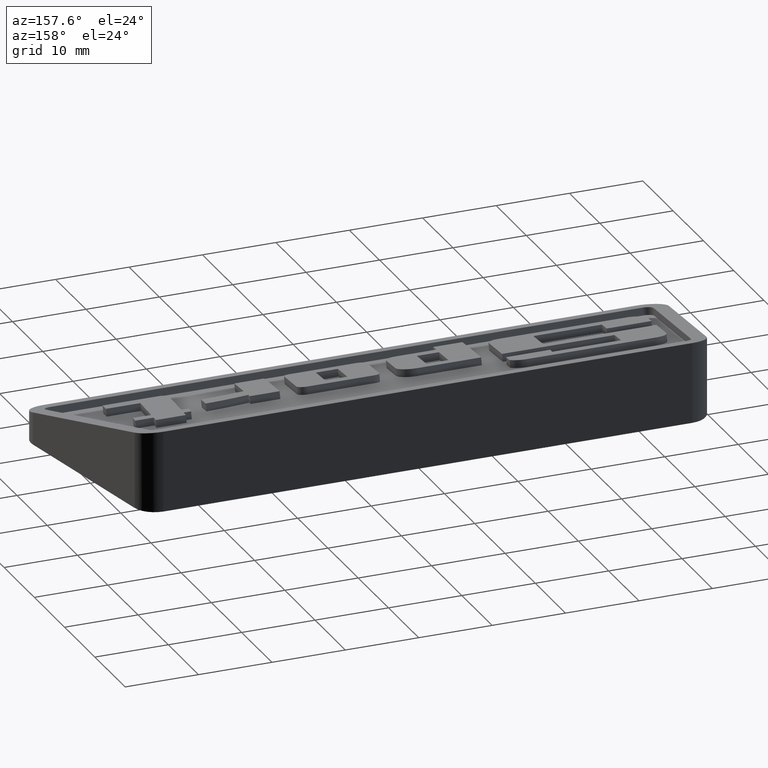
[diagram: clean part render]
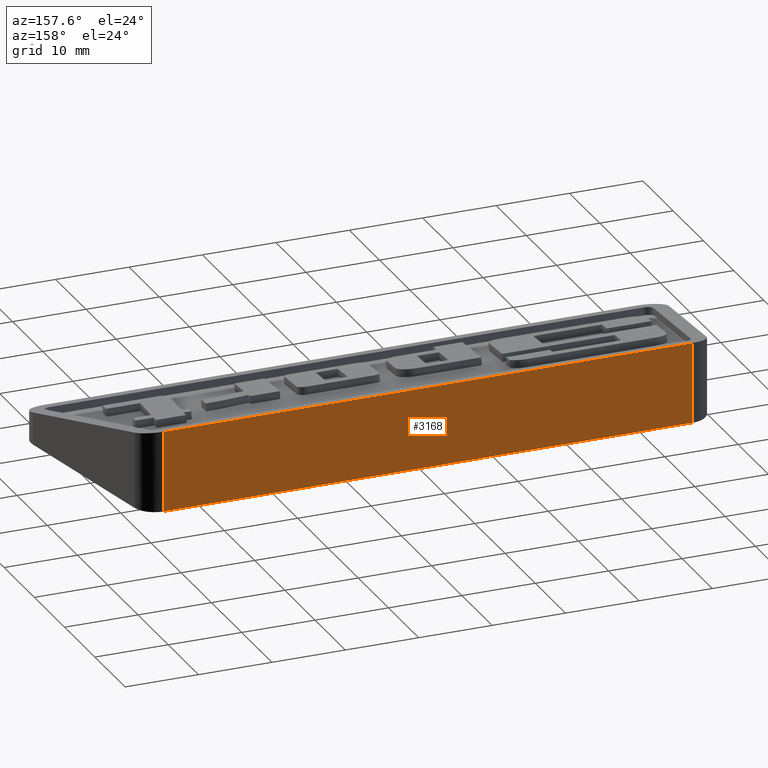
[diagram: same view with one face highlighted and labeled with its STEP entity id]
A machine part, auxiliary view. The second image highlights one B-rep face of the part: STEP entity #3168.
In plain terms, the highlighted planar face has unit normal (0, 1, 0).
Its self-contained STEP definition (entity closure, byte-faithful):
#2928=CARTESIAN_POINT('',(36.015488522107837,14.500000000000002,11.0));
#2929=VERTEX_POINT('',#2928);
#2937=CARTESIAN_POINT('',(-36.015488522107837,14.500000000000002,11.0));
#2938=VERTEX_POINT('',#2937);
#2939=CARTESIAN_POINT('',(-36.015488522107837,14.500000000000002,11.0));
#2940=DIRECTION('',(1.0,0.0,0.0));
#2941=VECTOR('',#2940,72.030977044215675);
#2942=LINE('',#2939,#2941);
#2943=EDGE_CURVE('',#2938,#2929,#2942,.T.);
#3035=CARTESIAN_POINT('',(-36.015488522107837,14.500000000000002,0.0));
#3036=VERTEX_POINT('',#3035);
#3037=CARTESIAN_POINT('',(-36.015488522107837,14.500000000000002,0.0));
#3038=DIRECTION('',(0.0,0.0,1.0));
#3039=VECTOR('',#3038,11.0);
#3040=LINE('',#3037,#3039);
#3041=EDGE_CURVE('',#3036,#2938,#3040,.T.);
#3068=CARTESIAN_POINT('',(36.015488522107837,14.500000000000002,0.0));
#3069=VERTEX_POINT('',#3068);
#3077=CARTESIAN_POINT('',(36.015488522107837,14.500000000000002,0.0));
#3078=DIRECTION('',(0.0,0.0,1.0));
#3079=VECTOR('',#3078,11.0);
#3080=LINE('',#3077,#3079);
#3081=EDGE_CURVE('',#3069,#2929,#3080,.T.);
#3152=CARTESIAN_POINT('',(-36.015488522107837,14.500000000000002,0.0));
#3153=DIRECTION('',(0.0,1.0,0.0));
#3154=DIRECTION('',(0.0,0.0,1.0));
#3155=AXIS2_PLACEMENT_3D('',#3152,#3153,#3154);
#3156=PLANE('',#3155);
#3157=ORIENTED_EDGE('',*,*,#2943,.T.);
#3158=ORIENTED_EDGE('',*,*,#3081,.F.);
#3159=CARTESIAN_POINT('',(36.015488522107837,14.500000000000002,0.0));
#3160=DIRECTION('',(-1.0,0.0,0.0));
#3161=VECTOR('',#3160,72.030977044215675);
#3162=LINE('',#3159,#3161);
#3163=EDGE_CURVE('',#3069,#3036,#3162,.T.);
#3164=ORIENTED_EDGE('',*,*,#3163,.T.);
#3165=ORIENTED_EDGE('',*,*,#3041,.T.);
#3166=EDGE_LOOP('',(#3157,#3158,#3164,#3165));
#3167=FACE_OUTER_BOUND('',#3166,.T.);
#3168=ADVANCED_FACE('',(#3167),#3156,.T.);